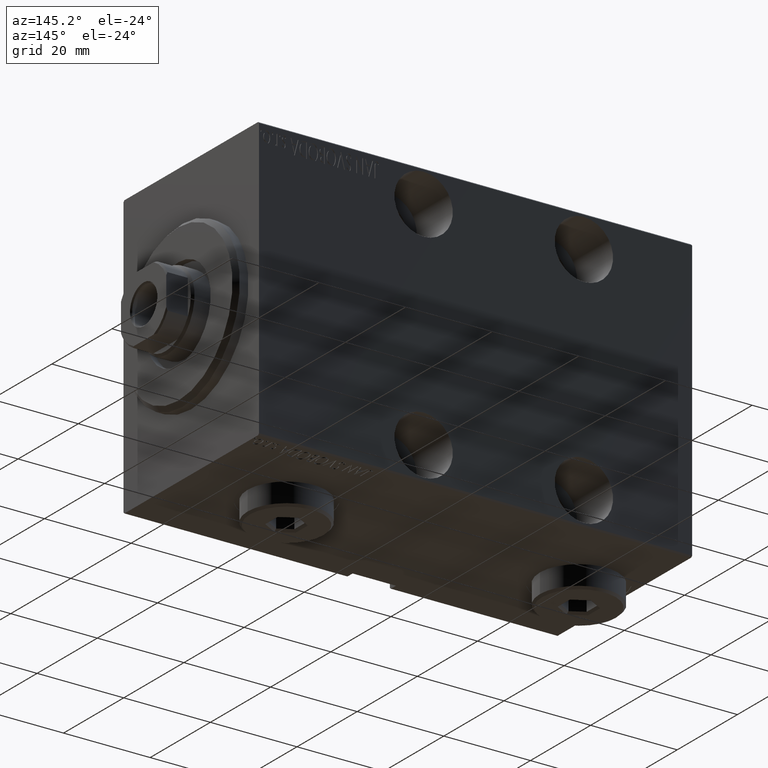
[diagram: clean part render]
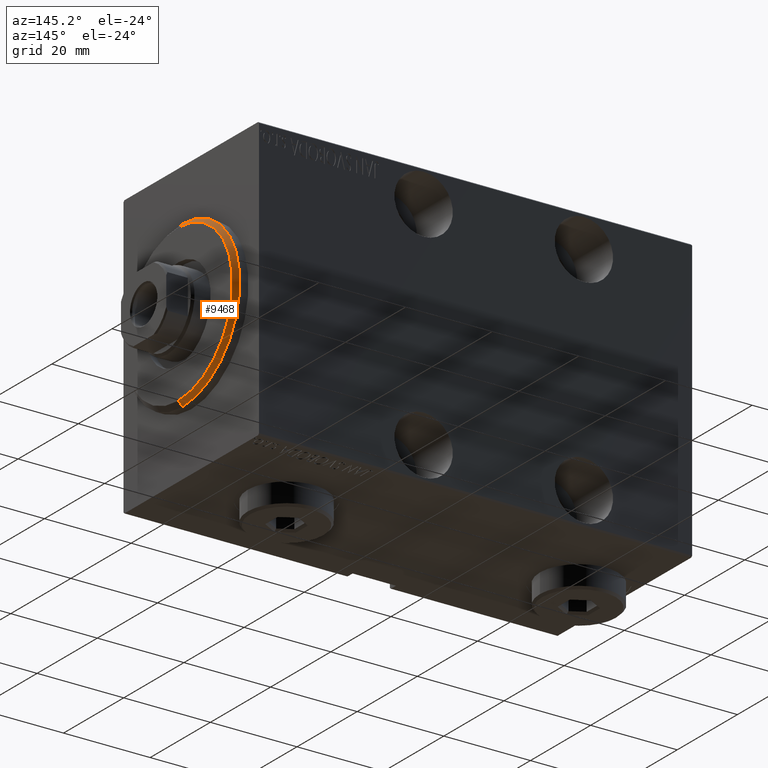
[diagram: same view with one face highlighted and labeled with its STEP entity id]
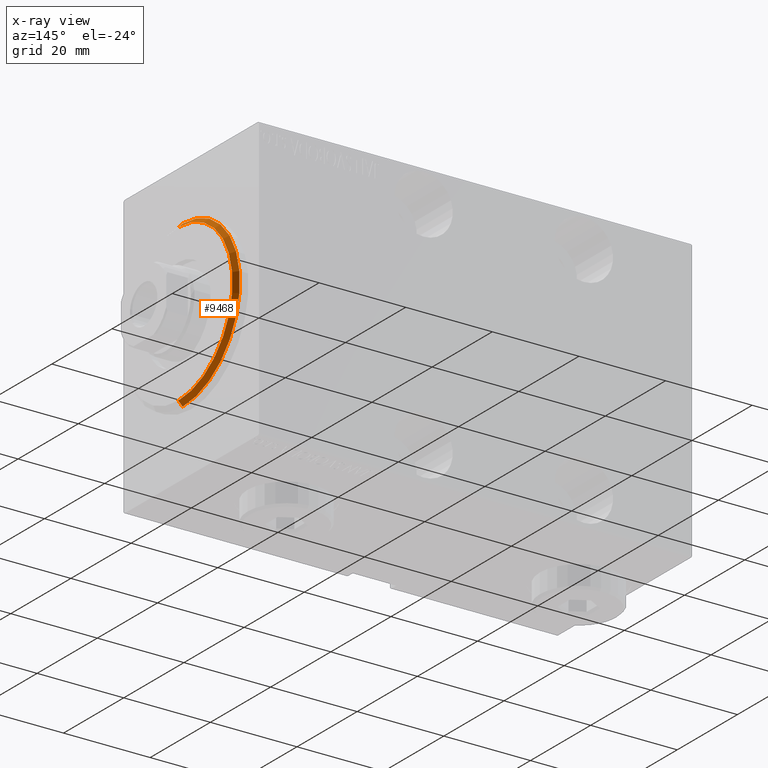
[diagram: x-ray of the same camera — body ghosted, the highlighted face saturated]
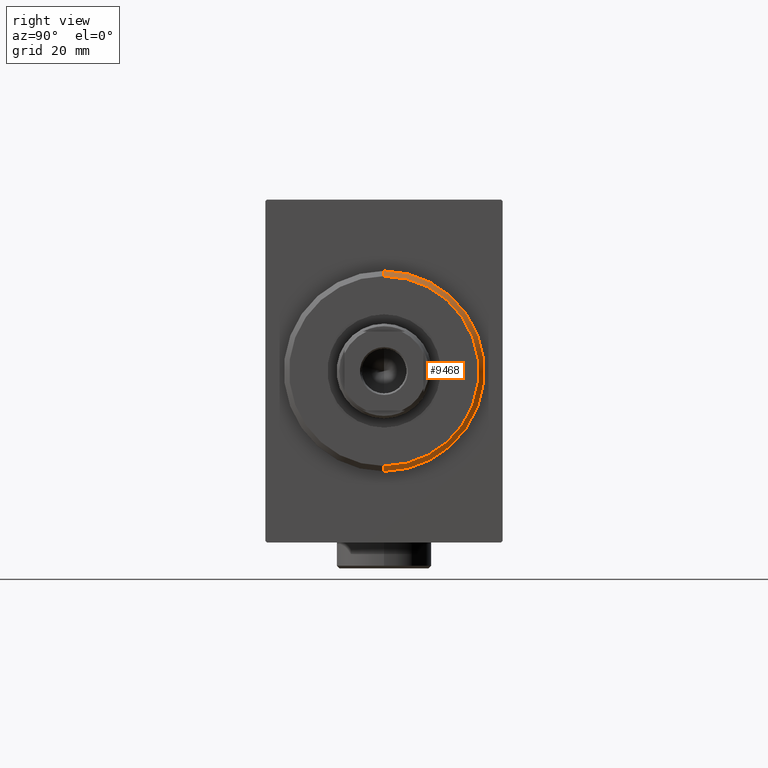
[diagram: same view with one face highlighted and labeled with its STEP entity id]
A machine part, auxiliary view. The second image highlights one B-rep face of the part: STEP entity #9468.
The next image is the same camera in x-ray: the body ghosted, the highlighted face saturated — about 0% of this face is hidden behind the body in this view.
A second angle (right view) of the same face is appended — the face is thin or edge-on in the first view.
In plain terms, the highlighted conical surface has half-angle 45 deg.
Its self-contained STEP definition (entity closure, byte-faithful):
#1811 = CARTESIAN_POINT ( 'NONE',  ( 3.000000000000000000, 2.265596578422603002E-15, -17.99999999999999645 ) ) ;
#2491 = EDGE_CURVE ( 'NONE', #4815, #11326, #13944, .T. ) ;
#2577 = LINE ( 'NONE', #19636, #32849 ) ;
#3023 = CARTESIAN_POINT ( 'NONE',  ( 3.000000000000000000, 0.000000000000000000, 17.99999999999999645 ) ) ;
#4815 = VERTEX_POINT ( 'NONE', #1811 ) ;
#6256 = CONICAL_SURFACE ( 'NONE', #40694, 17.99999999999999645, 0.7853981633974466137 ) ;
#6433 = EDGE_CURVE ( 'NONE', #7855, #22617, #20520, .T. ) ;
#6505 = FACE_OUTER_BOUND ( 'NONE', #32163, .T. ) ;
#6904 = AXIS2_PLACEMENT_3D ( 'NONE', #23914, #24143, #13354 ) ;
#7481 = CARTESIAN_POINT ( 'NONE',  ( 1.999999999999992228, 0.000000000000000000, 19.00000000000000000 ) ) ;
#7855 = VERTEX_POINT ( 'NONE', #7481 ) ;
#9468 = ADVANCED_FACE ( 'NONE', ( #6505 ), #6256, .T. ) ;
#9671 = EDGE_CURVE ( 'NONE', #11326, #7855, #30861, .T. ) ;
#10559 = EDGE_CURVE ( 'NONE', #4815, #22617, #2577, .T. ) ;
#11326 = VERTEX_POINT ( 'NONE', #36503 ) ;
#13227 = DIRECTION ( 'NONE',  ( -1.000000000000000000, 0.000000000000000000, 0.000000000000000000 ) ) ;
#13354 = DIRECTION ( 'NONE',  ( 0.000000000000000000, 0.000000000000000000, -1.000000000000000000 ) ) ;
#13944 = CIRCLE ( 'NONE', #16104, 17.99999999999999645 ) ;
#16104 = AXIS2_PLACEMENT_3D ( 'NONE', #24745, #20697, #24971 ) ;
#17072 = ORIENTED_EDGE ( 'NONE', *, *, #9671, .F. ) ;
#18047 = CARTESIAN_POINT ( 'NONE',  ( 1.999999999999992228, 2.326828918379970970E-15, -19.00000000000000000 ) ) ;
#19636 = CARTESIAN_POINT ( 'NONE',  ( 3.000000000000000000, 2.204364238465235033E-15, -17.99999999999999645 ) ) ;
#20520 = CIRCLE ( 'NONE', #6904, 19.00000000000000000 ) ;
#20697 = DIRECTION ( 'NONE',  ( 1.000000000000000000, -0.000000000000000000, 0.000000000000000000 ) ) ;
#21338 = VECTOR ( 'NONE', #23898, 1000.000000000000000 ) ;
#22617 = VERTEX_POINT ( 'NONE', #18047 ) ;
#23898 = DIRECTION ( 'NONE',  ( -0.7071067811865487940, 0.000000000000000000, 0.7071067811865463515 ) ) ;
#23914 = CARTESIAN_POINT ( 'NONE',  ( 1.999999999999992228, 0.000000000000000000, 0.000000000000000000 ) ) ;
#24143 = DIRECTION ( 'NONE',  ( -1.000000000000000000, 0.000000000000000000, 0.000000000000000000 ) ) ;
#24745 = CARTESIAN_POINT ( 'NONE',  ( 3.000000000000000000, 0.000000000000000000, 0.000000000000000000 ) ) ;
#24971 = DIRECTION ( 'NONE',  ( 0.000000000000000000, 0.000000000000000000, -1.000000000000000000 ) ) ;
#27164 = CARTESIAN_POINT ( 'NONE',  ( 3.000000000000000000, 0.000000000000000000, 0.000000000000000000 ) ) ;
#30861 = LINE ( 'NONE', #3023, #21338 ) ;
#32144 = ORIENTED_EDGE ( 'NONE', *, *, #2491, .F. ) ;
#32163 = EDGE_LOOP ( 'NONE', ( #32144, #37625, #39196, #17072 ) ) ;
#32849 = VECTOR ( 'NONE', #33358, 1000.000000000000000 ) ;
#33358 = DIRECTION ( 'NONE',  ( -0.7071067811865487940, 8.659560562354918067E-17, -0.7071067811865463515 ) ) ;
#36503 = CARTESIAN_POINT ( 'NONE',  ( 3.000000000000000000, 0.000000000000000000, 17.99999999999999645 ) ) ;
#37625 = ORIENTED_EDGE ( 'NONE', *, *, #10559, .T. ) ;
#37715 = DIRECTION ( 'NONE',  ( 0.000000000000000000, 0.000000000000000000, 1.000000000000000000 ) ) ;
#39196 = ORIENTED_EDGE ( 'NONE', *, *, #6433, .F. ) ;
#40694 = AXIS2_PLACEMENT_3D ( 'NONE', #27164, #13227, #37715 ) ;